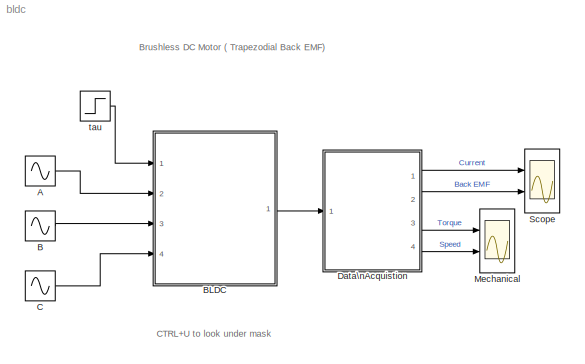
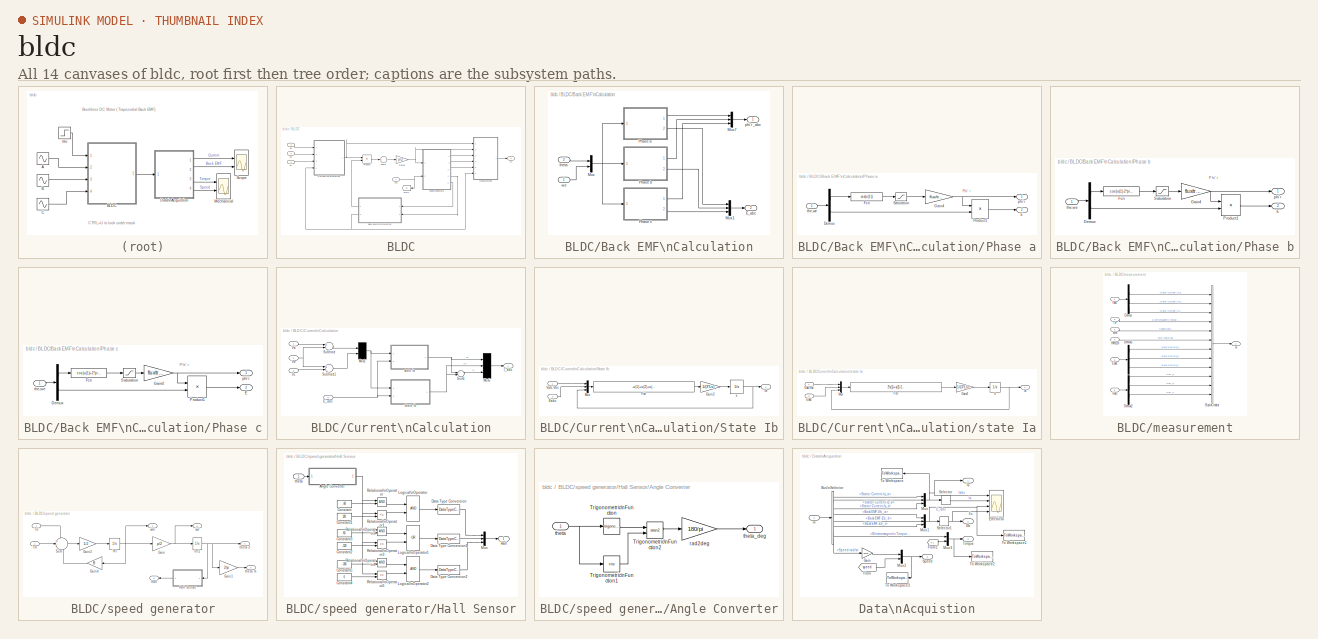
[diagram: thumbnail index - all 14 canvases of the model, root first then tree order]
MODEL bldc
KIND model
CONFIG InitFcn = Ts=10e-6;
BLOCK [Sin] A
  Amplitude = 220*sqrt(2)
  Frequency = 2*pi*50
  Ports = [0, 1]
  SID = 1
  SampleTime = Ts
BLOCK [Sin] B
  Amplitude = 220*sqrt(2)
  Frequency = 2*pi*50
  Phase = -2*pi/3
  Ports = [0, 1]
  SID = 2
  SampleTime = Ts
BLOCK [SubSystem] BLDC
  Ports = [4, 1]
  RequestExecContextInheritance = off
  SID = 3
BLOCK [SubSystem] BLDC/Back EMF\nCalculation
  Ports = [2, 2]
  RequestExecContextInheritance = off
  SID = 8
BLOCK [Outport] BLDC/Back EMF\nCalculation/E_abc
  IconDisplay = Port number
  Port = 2
  SID = 45
BLOCK [Mux] BLDC/Back EMF\nCalculation/Mux
  DisplayOption = bar
  Inputs = 2
  Ports = [2, 1]
  SID = 11
BLOCK [Mux] BLDC/Back EMF\nCalculation/Mux1
  DisplayOption = bar
  Inputs = 3
  Ports = [3, 1]
  SID = 12
BLOCK [Mux] BLDC/Back EMF\nCalculation/Mux7
  DisplayOption = bar
  Inputs = 3
  Ports = [3, 1]
  SID = 13
BLOCK [SubSystem] BLDC/Back EMF\nCalculation/Phase a
  Ports = [1, 2]
  RequestExecContextInheritance = off
  SID = 14
BLOCK [Demux] BLDC/Back EMF\nCalculation/Phase a/Demux
  Outputs = 2
  Ports = [1, 2]
  SID = 16
BLOCK [Outport] BLDC/Back EMF\nCalculation/Phase a/E
  IconDisplay = Port number
  Port = 2
  SID = 22
BLOCK [Fcn] BLDC/Back EMF\nCalculation/Phase a/Fcn
  Expr = cos(u(1))
  SID = 17
BLOCK [Gain] BLDC/Back EMF\nCalculation/Phase a/Gain4
  Gain = flux/trap
  SID = 18
BLOCK [Product] BLDC/Back EMF\nCalculation/Phase a/Product1
  InputSameDT = off
  Ports = [2, 1]
  RndMeth = Floor
  SID = 19
BLOCK [Saturate] BLDC/Back EMF\nCalculation/Phase a/Saturation
  InputPortMap = u0
  LowerLimit = -trap
  Ports = [1, 1]
  SID = 20
  UpperLimit = trap
BLOCK [Outport] BLDC/Back EMF\nCalculation/Phase a/phi'r
  IconDisplay = Port number
  SID = 21
BLOCK [Inport] BLDC/Back EMF\nCalculation/Phase a/the,we
  IconDisplay = Port number
  SID = 15
BLOCK [SubSystem] BLDC/Back EMF\nCalculation/Phase b
  Ports = [1, 2]
  RequestExecContextInheritance = off
  SID = 24
BLOCK [Demux] BLDC/Back EMF\nCalculation/Phase b/Demux
  Outputs = 2
  Ports = [1, 2]
  SID = 26
BLOCK [Outport] BLDC/Back EMF\nCalculation/Phase b/E
  IconDisplay = Port number
  Port = 2
  SID = 32
BLOCK [Fcn] BLDC/Back EMF\nCalculation/Phase b/Fcn
  Expr = cos(u(1)-2*pi/3)
  SID = 27
BLOCK [Gain] BLDC/Back EMF\nCalculation/Phase b/Gain4
  Gain = flux/trap
  SID = 28
BLOCK [Product] BLDC/Back EMF\nCalculation/Phase b/Product1
  InputSameDT = off
  Ports = [2, 1]
  RndMeth = Floor
  SID = 29
BLOCK [Saturate] BLDC/Back EMF\nCalculation/Phase b/Saturation
  InputPortMap = u0
  LowerLimit = -trap
  Ports = [1, 1]
  SID = 30
  UpperLimit = trap
BLOCK [Outport] BLDC/Back EMF\nCalculation/Phase b/phi'r
  IconDisplay = Port number
  SID = 31
BLOCK [Inport] BLDC/Back EMF\nCalculation/Phase b/the,we
  IconDisplay = Port number
  SID = 25
BLOCK [SubSystem] BLDC/Back EMF\nCalculation/Phase c
  Ports = [1, 2]
  RequestExecContextInheritance = off
  SID = 34
BLOCK [Demux] BLDC/Back EMF\nCalculation/Phase c/Demux
  Outputs = 2
  Ports = [1, 2]
  SID = 36
BLOCK [Outport] BLDC/Back EMF\nCalculation/Phase c/E
  IconDisplay = Port number
  Port = 2
  SID = 42
BLOCK [Fcn] BLDC/Back EMF\nCalculation/Phase c/Fcn
  Expr = cos(u(1)+2*pi/3)
  SID = 37
BLOCK [Gain] BLDC/Back EMF\nCalculation/Phase c/Gain4
  Gain = flux/trap
  SID = 38
BLOCK [Product] BLDC/Back EMF\nCalculation/Phase c/Product1
  InputSameDT = off
  Ports = [2, 1]
  RndMeth = Floor
  SID = 39
BLOCK [Saturate] BLDC/Back EMF\nCalculation/Phase c/Saturation
  InputPortMap = u0
  LowerLimit = -trap
  Ports = [1, 1]
  SID = 40
  UpperLimit = trap
BLOCK [Outport] BLDC/Back EMF\nCalculation/Phase c/phi'r
  IconDisplay = Port number
  SID = 41
BLOCK [Inport] BLDC/Back EMF\nCalculation/Phase c/the,we
  IconDisplay = Port number
  SID = 35
BLOCK [Outport] BLDC/Back EMF\nCalculation/phi'r _abc
  IconDisplay = Port number
  SID = 44
BLOCK [Inport] BLDC/Back EMF\nCalculation/theta
  IconDisplay = Port number
  Port = 2
  SID = 10
BLOCK [Inport] BLDC/Back EMF\nCalculation/we
  IconDisplay = Port number
  SID = 9
BLOCK [SubSystem] BLDC/Current\nCalculation
  Ports = [4, 1]
  RequestExecContextInheritance = off
  SID = 46
BLOCK [Inport] BLDC/Current\nCalculation/E_abc
  IconDisplay = Port number
  Port = 4
  SID = 50
BLOCK [Outport] BLDC/Current\nCalculation/I_abc
  IconDisplay = Port number
  SID = 72
BLOCK [Mux] BLDC/Current\nCalculation/Mux2
  DisplayOption = signals
  Inputs = 2
  Ports = [2, 1]
  SID = 51
BLOCK [Mux] BLDC/Current\nCalculation/Mux5
  DisplayOption = signals
  Inputs = 3
  Ports = [3, 1]
  SID = 52
BLOCK [SubSystem] BLDC/Current\nCalculation/State Ib
  Ports = [2, 1]
  RequestExecContextInheritance = off
  SID = 53
BLOCK [Inport] BLDC/Current\nCalculation/State Ib/Eabc
  IconDisplay = Port number
  Port = 2
  SID = 55
BLOCK [Fcn] BLDC/Current\nCalculation/State Ib/Fcn
  Expr = -u(1)+u(2)+u(3)-2*u(4)+u(5)-3*Rs*u(6)
  SID = 56
BLOCK [Gain] BLDC/Current\nCalculation/State Ib/Gain2
  Gain = 1/(3*Ls)
  SID = 57
BLOCK [Outport] BLDC/Current\nCalculation/State Ib/Ib
  IconDisplay = Port number
  SID = 60
BLOCK [Mux] BLDC/Current\nCalculation/State Ib/Mux
  DisplayOption = bar
  Inputs = 3
  Ports = [3, 1]
  SID = 58
BLOCK [Inport] BLDC/Current\nCalculation/State Ib/Vab,Vbc
  IconDisplay = Port number
  SID = 54
BLOCK [Integrator] BLDC/Current\nCalculation/State Ib/s 
  Ports = [1, 1]
  SID = 59
BLOCK [Sum] BLDC/Current\nCalculation/Subtract
  InputSameDT = off
  Inputs = +-
  OutDataTypeStr = Inherit: Inherit via internal rule
  Ports = [2, 1]
  SID = 61
  SaturateOnIntegerOverflow = off
BLOCK [Sum] BLDC/Current\nCalculation/Subtract1
  InputSameDT = off
  Inputs = +-
  OutDataTypeStr = Inherit: Inherit via internal rule
  Ports = [2, 1]
  SID = 62
  SaturateOnIntegerOverflow = off
BLOCK [Sum] BLDC/Current\nCalculation/Sum1
  InputSameDT = off
  Inputs = --
  OutDataTypeStr = Inherit: Inherit via internal rule
  Ports = [2, 1]
  SID = 63
BLOCK [Inport] BLDC/Current\nCalculation/Va
  IconDisplay = Port number
  SID = 47
BLOCK [Inport] BLDC/Current\nCalculation/Vb
  IconDisplay = Port number
  Port = 2
  SID = 48
BLOCK [Inport] BLDC/Current\nCalculation/Vc
  IconDisplay = Port number
  Port = 3
  SID = 49
BLOCK [SubSystem] BLDC/Current\nCalculation/state Ia
  Ports = [2, 1]
  RequestExecContextInheritance = off
  SID = 64
BLOCK [Inport] BLDC/Current\nCalculation/state Ia/Eabc
  IconDisplay = Port number
  Port = 2
  SID = 66
BLOCK [Fcn] BLDC/Current\nCalculation/state Ia/Fcn
  Expr = 2*u(1)+u(2)-2*u(3)+u(4)+u(5)-3*Rs*u(6)
  SID = 67
BLOCK [Gain] BLDC/Current\nCalculation/state Ia/Gain2
  Gain = 1/(3*Ls)
  SID = 68
BLOCK [Outport] BLDC/Current\nCalculation/state Ia/Ia
  IconDisplay = Port number
  SID = 71
BLOCK [Mux] BLDC/Current\nCalculation/state Ia/Mux
  DisplayOption = bar
  Inputs = 3
  Ports = [3, 1]
  SID = 69
BLOCK [Inport] BLDC/Current\nCalculation/state Ia/Vab,Vbc
  IconDisplay = Port number
  SID = 65
BLOCK [Integrator] BLDC/Current\nCalculation/state Ia/s 
  Ports = [1, 1]
  SID = 70
BLOCK [Gain] BLDC/Gain3
  Gain = p/2
  SID = 73
BLOCK [Goto] BLDC/Goto
  GotoTag = TL
  SID = 74
  TagVisibility = global
BLOCK [Product] BLDC/Product
  InputSameDT = off
  Ports = [2, 1]
  RndMeth = Floor
  SID = 75
BLOCK [Sum] BLDC/Sum2
  InputSameDT = off
  Inputs = +
  OutDataTypeStr = Inherit: Inherit via internal rule
  Ports = [1, 1]
  SID = 76
BLOCK [Inport] BLDC/Tm
  IconDisplay = Port number
  SID = 4
BLOCK [Inport] BLDC/Va
  IconDisplay = Port number
  Port = 2
  SID = 5
BLOCK [Inport] BLDC/Vb
  IconDisplay = Port number
  Port = 3
  SID = 6
BLOCK [Inport] BLDC/Vc
  IconDisplay = Port number
  Port = 4
  SID = 7
BLOCK [Outport] BLDC/m
  IconDisplay = Port number
  SID = 133
BLOCK [SubSystem] BLDC/measurement
  Ports = [6, 1]
  RequestExecContextInheritance = off
  SID = 77
BLOCK [BusCreator] BLDC/measurement/Bus\nCreator
  DisplayOption = bar
  Inputs = 12
  Ports = [12, 1]
  SID = 84
BLOCK [Demux] BLDC/measurement/Demux
  DisplayOption = bar
  Outputs = 3
  Ports = [1, 3]
  SID = 85
BLOCK [Demux] BLDC/measurement/Demux1
  DisplayOption = bar
  Outputs = 3
  Ports = [1, 3]
  SID = 86
BLOCK [Demux] BLDC/measurement/Demux2
  DisplayOption = bar
  Outputs = 3
  Ports = [1, 3]
  SID = 87
BLOCK [Inport] BLDC/measurement/Eabc
  IconDisplay = Port number
  Port = 6
  SID = 83
BLOCK [Inport] BLDC/measurement/Hall
  IconDisplay = Port number
  Port = 5
  SID = 82
BLOCK [Inport] BLDC/measurement/Iabc
  IconDisplay = Port number
  SID = 78
BLOCK [Inport] BLDC/measurement/Te
  IconDisplay = Port number
  Port = 2
  SID = 79
BLOCK [Outport] BLDC/measurement/m
  IconDisplay = Port number
  SID = 88
BLOCK [Inport] BLDC/measurement/theta_m
  IconDisplay = Port number
  Port = 4
  SID = 81
BLOCK [Inport] BLDC/measurement/wm
  IconDisplay = Port number
  Port = 3
  SID = 80
BLOCK [SubSystem] BLDC/speed generator
  Ports = [2, 5]
  RequestExecContextInheritance = off
  SID = 89
BLOCK [Gain] BLDC/speed generator/Gain
  Gain = p/2
  SID = 92
BLOCK [Gain] BLDC/speed generator/Gain1
  Gain = 2/p
  SID = 93
BLOCK [Gain] BLDC/speed generator/Gain2
  Gain = 1/J
  SID = 94
BLOCK [Gain] BLDC/speed generator/Gain4
  Gain = B
  SID = 95
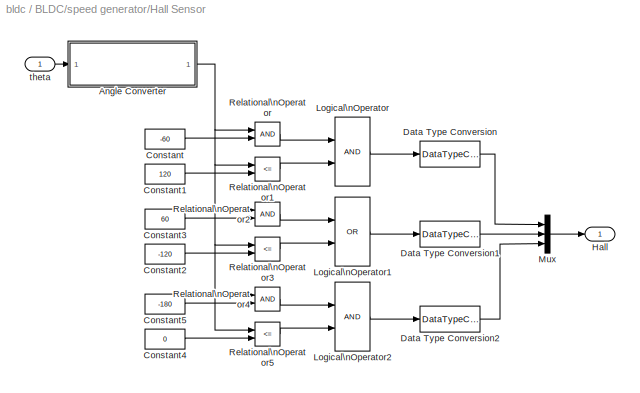
BLOCK [SubSystem] BLDC/speed generator/Hall Sensor
  Ports = [1, 1]
  RequestExecContextInheritance = off
  SID = 96
BLOCK [SubSystem] BLDC/speed generator/Hall Sensor/Angle Converter
  Ports = [1, 1]
  RequestExecContextInheritance = off
  SID = 98
BLOCK [Trigonometry] BLDC/speed generator/Hall Sensor/Angle Converter/Trigonometric\nFunction
  Ports = [1, 1]
  SID = 100
BLOCK [Trigonometry] BLDC/speed generator/Hall Sensor/Angle Converter/Trigonometric\nFunction1
  Operator = cos
  Ports = [1, 1]
  SID = 101
BLOCK [Trigonometry] BLDC/speed generator/Hall Sensor/Angle Converter/Trigonometric\nFunction2
  Operator = atan2
  Ports = [2, 1]
  SID = 102
BLOCK [Gain] BLDC/speed generator/Hall Sensor/Angle Converter/rad2deg
  Gain = 180/pi
  OutDataTypeStr = Inherit: Inherit via internal rule
  ParamDataTypeStr = Inherit: Inherit via internal rule
  SID = 103
  SaturateOnIntegerOverflow = off
BLOCK [Inport] BLDC/speed generator/Hall Sensor/Angle Converter/theta
  IconDisplay = Port number
  SID = 99
BLOCK [Outport] BLDC/speed generator/Hall Sensor/Angle Converter/theta_deg
  IconDisplay = Port number
  SID = 104
BLOCK [Constant] BLDC/speed generator/Hall Sensor/Constant
  SID = 105
  Value = -60
BLOCK [Constant] BLDC/speed generator/Hall Sensor/Constant1
  SID = 106
  Value = 120
BLOCK [Constant] BLDC/speed generator/Hall Sensor/Constant2
  SID = 107
  Value = -120
BLOCK [Constant] BLDC/speed generator/Hall Sensor/Constant3
  SID = 108
  Value = 60
BLOCK [Constant] BLDC/speed generator/Hall Sensor/Constant4
  SID = 109
  Value = 0
BLOCK [Constant] BLDC/speed generator/Hall Sensor/Constant5
  SID = 110
  Value = -180
BLOCK [DataTypeConversion] BLDC/speed generator/Hall Sensor/Data Type Conversion
  RndMeth = Floor
  SID = 111
  SaturateOnIntegerOverflow = off
BLOCK [DataTypeConversion] BLDC/speed generator/Hall Sensor/Data Type Conversion1
  RndMeth = Floor
  SID = 112
  SaturateOnIntegerOverflow = off
BLOCK [DataTypeConversion] BLDC/speed generator/Hall Sensor/Data Type Conversion2
  RndMeth = Floor
  SID = 113
  SaturateOnIntegerOverflow = off
BLOCK [Outport] BLDC/speed generator/Hall Sensor/Hall
  IconDisplay = Port number
  SID = 124
BLOCK [Logic] BLDC/speed generator/Hall Sensor/Logical\nOperator
  AllPortsSameDT = off
  OutDataTypeStr = boolean
  Ports = [2, 1]
  SID = 114
BLOCK [Logic] BLDC/speed generator/Hall Sensor/Logical\nOperator1
  AllPortsSameDT = off
  Operator = OR
  OutDataTypeStr = boolean
  Ports = [2, 1]
  SID = 115
BLOCK [Logic] BLDC/speed generator/Hall Sensor/Logical\nOperator2
  AllPortsSameDT = off
  OutDataTypeStr = boolean
  Ports = [2, 1]
  SID = 116
BLOCK [Mux] BLDC/speed generator/Hall Sensor/Mux
  DisplayOption = bar
  Inputs = 3
  Ports = [3, 1]
  SID = 117
BLOCK [RelationalOperator] BLDC/speed generator/Hall Sensor/Relational\nOperator
  InputSameDT = off
  OutDataTypeStr = boolean
  Ports = [2, 1]
  SID = 118
BLOCK [RelationalOperator] BLDC/speed generator/Hall Sensor/Relational\nOperator1
  InputSameDT = off
  Operator = <=
  OutDataTypeStr = boolean
  Ports = [2, 1]
  SID = 119
BLOCK [RelationalOperator] BLDC/speed generator/Hall Sensor/Relational\nOperator2
  InputSameDT = off
  OutDataTypeStr = boolean
  Ports = [2, 1]
  SID = 120
BLOCK [RelationalOperator] BLDC/speed generator/Hall Sensor/Relational\nOperator3
  InputSameDT = off
  Operator = <=
  OutDataTypeStr = boolean
  Ports = [2, 1]
  SID = 121
BLOCK [RelationalOperator] BLDC/speed generator/Hall Sensor/Relational\nOperator4
  InputSameDT = off
  OutDataTypeStr = boolean
  Ports = [2, 1]
  SID = 122
BLOCK [RelationalOperator] BLDC/speed generator/Hall Sensor/Relational\nOperator5
  InputSameDT = off
  Operator = <=
  OutDataTypeStr = boolean
  Ports = [2, 1]
  SID = 123
BLOCK [Inport] BLDC/speed generator/Hall Sensor/theta
  IconDisplay = Port number
  SID = 97
BLOCK [Integrator] BLDC/speed generator/Int
  Ports = [1, 1]
  SID = 125
BLOCK [Integrator] BLDC/speed generator/Int1
  Ports = [1, 1]
  SID = 126
BLOCK [Sum] BLDC/speed generator/Sum
  IconShape = round
  Inputs = +--
  Ports = [3, 1]
  SID = 127
BLOCK [Inport] BLDC/speed generator/Te
  IconDisplay = Port number
  SID = 90
BLOCK [Inport] BLDC/speed generator/Tm
  IconDisplay = Port number
  Port = 2
  SID = 91
BLOCK [Outport] BLDC/speed generator/hall
  IconDisplay = Port number
  Port = 3
  SID = 130
BLOCK [Outport] BLDC/speed generator/theta e
  IconDisplay = Port number
  Port = 4
  SID = 131
BLOCK [Outport] BLDC/speed generator/theta m
  IconDisplay = Port number
  Port = 2
  SID = 129
BLOCK [Outport] BLDC/speed generator/we
  IconDisplay = Port number
  Port = 5
  SID = 132
BLOCK [Outport] BLDC/speed generator/wm
  IconDisplay = Port number
  SID = 128
BLOCK [Sin] C
  Amplitude = 220*sqrt(2)
  Frequency = 2*pi*50
  Phase = 2*pi/3
  Ports = [0, 1]
  SID = 134
  SampleTime = Ts
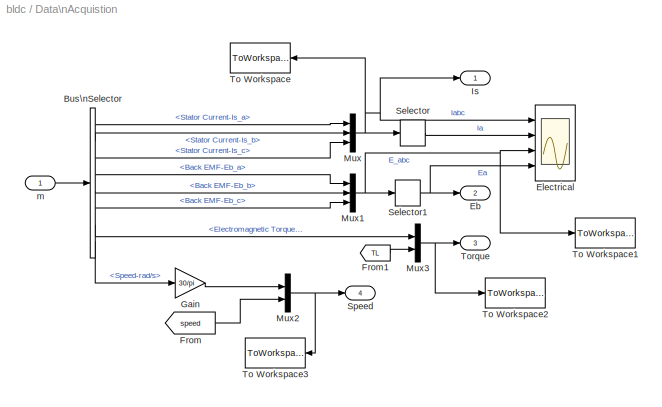
BLOCK [SubSystem] Data\nAcquistion
  Ports = [1, 4]
  RequestExecContextInheritance = off
  SID = 135
BLOCK [BusSelector] Data\nAcquistion/Bus\nSelector
  OutputSignals = Stator Current-Is_a,Stator Current-Is_b,Stator Current-Is_c,Back EMF-Eb_a,Back EMF-Eb_b,Back EMF-Eb_c,Electromagnetic Torque-Nm,Speed-rad/s
  Ports = [1, 8]
  SID = 137
BLOCK [Outport] Data\nAcquistion/Eb
  IconDisplay = Port number
  Port = 2
  SID = 153
BLOCK [Scope] Data\nAcquistion/Electrical
  DataFormat = StructureWithTime
  Floating = off
  LimitDataPoints = off
  NumInputPorts = 4
  Ports = [4]
  SID = 138
  SampleTime = 0
  SaveName = ScopeData3
  ShowLegends = off
  TimeRange = 1
  YMax = 40~30~100~100
  YMin = -40~-20~-100~-100
  ZoomMode = yonly
BLOCK [From] Data\nAcquistion/From
  GotoTag = speed
  SID = 139
BLOCK [From] Data\nAcquistion/From1
  GotoTag = TL
  SID = 140
  TagVisibility = global
BLOCK [Gain] Data\nAcquistion/Gain
  Gain = 30/pi
  OutDataTypeStr = Inherit: Inherit via internal rule
  ParamDataTypeStr = Inherit: Inherit via internal rule
  SID = 141
  SaturateOnIntegerOverflow = off
BLOCK [Outport] Data\nAcquistion/Is
  IconDisplay = Port number
  SID = 152
BLOCK [Mux] Data\nAcquistion/Mux
  DisplayOption = bar
  Inputs = 3
  Ports = [3, 1]
  SID = 142
BLOCK [Mux] Data\nAcquistion/Mux1
  DisplayOption = bar
  Inputs = 3
  Ports = [3, 1]
  SID = 143
BLOCK [Mux] Data\nAcquistion/Mux2
  DisplayOption = bar
  Inputs = 2
  Ports = [2, 1]
  SID = 144
BLOCK [Mux] Data\nAcquistion/Mux3
  DisplayOption = bar
  Inputs = 2
  Ports = [2, 1]
  SID = 145
BLOCK [Selector] Data\nAcquistion/Selector
  Indices = [1 ]
  InputPortWidth = 3
  Ports = [1, 1]
  SID = 146
BLOCK [Selector] Data\nAcquistion/Selector1
  Indices = [1 ]
  InputPortWidth = 3
  Ports = [1, 1]
  SID = 147
BLOCK [Outport] Data\nAcquistion/Speed
  IconDisplay = Port number
  Port = 4
  SID = 155
BLOCK [ToWorkspace] Data\nAcquistion/To Workspace
  MaxDataPoints = inf
  Ports = [1]
  SID = 148
  SampleTime = Ts
  VariableName = Iabc_pi
BLOCK [ToWorkspace] Data\nAcquistion/To Workspace1
  MaxDataPoints = inf
  Ports = [1]
  SID = 149
  SampleTime = Ts
  VariableName = Eabc_pi
BLOCK [ToWorkspace] Data\nAcquistion/To Workspace2
  MaxDataPoints = inf
  Ports = [1]
  SID = 150
  SampleTime = Ts
  VariableName = Te_pi
BLOCK [ToWorkspace] Data\nAcquistion/To Workspace3
  MaxDataPoints = inf
  Ports = [1]
  SID = 151
  SampleTime = Ts
  VariableName = N_pi
BLOCK [Outport] Data\nAcquistion/Torque
  IconDisplay = Port number
  Port = 3
  SID = 154
BLOCK [Inport] Data\nAcquistion/m
  IconDisplay = Port number
  SID = 136
BLOCK [Scope] Mechanical
  DataFormat = StructureWithTime
  Floating = off
  LimitDataPoints = off
  NumInputPorts = 2
  Ports = [2]
  SID = 156
  SampleTime = 0
  SaveName = ScopeData1
  ShowLegends = off
  TimeRange = 1
  YMax = 50~2000
  YMin = -20~0
  ZoomMode = yonly
BLOCK [Scope] Scope
  DataFormat = StructureWithTime
  Floating = off
  LimitDataPoints = off
  NumInputPorts = 2
  Ports = [2]
  SID = 157
  SampleTime = 0
  ShowLegends = off
  TimeRange = 1
  YMax = 150~100
  YMin = -100~-100
  ZoomMode = xonly
BLOCK [Step] tau
  After = 10
  SID = 158
  SampleTime = 0
  Time = 0.5
ANNOTATION (root): Brushless DC Motor ( Trapezodial Back EMF)
ANNOTATION (root): CTRL+U to look under mask
ANNOTATION BLDC/Back EMF\nCalculation/Phase a: Phi' r
ANNOTATION BLDC/Back EMF\nCalculation/Phase b: Phi' r
ANNOTATION BLDC/Back EMF\nCalculation/Phase c: Phi' r
LINE A:1 -> BLDC:2
LINE B:1 -> BLDC:3
LINE BLDC/Back EMF\nCalculation/Mux1:1 -> BLDC/Back EMF\nCalculation/E_abc:1
LINE BLDC/Back EMF\nCalculation/Mux7:1 -> BLDC/Back EMF\nCalculation/phi'r _abc:1
NET BLDC/Back EMF\nCalculation/Mux:1 -> BLDC/Back EMF\nCalculation/Phase a:1, BLDC/Back EMF\nCalculation/Phase b:1, BLDC/Back EMF\nCalculation/Phase c:1
LINE BLDC/Back EMF\nCalculation/Phase a/Demux:1 -> BLDC/Back EMF\nCalculation/Phase a/Fcn:1
LINE BLDC/Back EMF\nCalculation/Phase a/Demux:2 -> BLDC/Back EMF\nCalculation/Phase a/Product1:2
LINE BLDC/Back EMF\nCalculation/Phase a/Fcn:1 -> BLDC/Back EMF\nCalculation/Phase a/Saturation:1
NET BLDC/Back EMF\nCalculation/Phase a/Gain4:1 -> BLDC/Back EMF\nCalculation/Phase a/Product1:1, BLDC/Back EMF\nCalculation/Phase a/phi'r:1
LINE BLDC/Back EMF\nCalculation/Phase a/Product1:1 -> BLDC/Back EMF\nCalculation/Phase a/E:1
LINE BLDC/Back EMF\nCalculation/Phase a/Saturation:1 -> BLDC/Back EMF\nCalculation/Phase a/Gain4:1
LINE BLDC/Back EMF\nCalculation/Phase a/the,we:1 -> BLDC/Back EMF\nCalculation/Phase a/Demux:1
LINE BLDC/Back EMF\nCalculation/Phase a:1 -> BLDC/Back EMF\nCalculation/Mux7:1
LINE BLDC/Back EMF\nCalculation/Phase a:2 -> BLDC/Back EMF\nCalculation/Mux1:1
LINE BLDC/Back EMF\nCalculation/Phase b/Demux:1 -> BLDC/Back EMF\nCalculation/Phase b/Fcn:1
LINE BLDC/Back EMF\nCalculation/Phase b/Demux:2 -> BLDC/Back EMF\nCalculation/Phase b/Product1:2
LINE BLDC/Back EMF\nCalculation/Phase b/Fcn:1 -> BLDC/Back EMF\nCalculation/Phase b/Saturation:1
NET BLDC/Back EMF\nCalculation/Phase b/Gain4:1 -> BLDC/Back EMF\nCalculation/Phase b/Product1:1, BLDC/Back EMF\nCalculation/Phase b/phi'r:1
LINE BLDC/Back EMF\nCalculation/Phase b/Product1:1 -> BLDC/Back EMF\nCalculation/Phase b/E:1
LINE BLDC/Back EMF\nCalculation/Phase b/Saturation:1 -> BLDC/Back EMF\nCalculation/Phase b/Gain4:1
LINE BLDC/Back EMF\nCalculation/Phase b/the,we:1 -> BLDC/Back EMF\nCalculation/Phase b/Demux:1
LINE BLDC/Back EMF\nCalculation/Phase b:1 -> BLDC/Back EMF\nCalculation/Mux7:2
LINE BLDC/Back EMF\nCalculation/Phase b:2 -> BLDC/Back EMF\nCalculation/Mux1:2
LINE BLDC/Back EMF\nCalculation/Phase c/Demux:1 -> BLDC/Back EMF\nCalculation/Phase c/Fcn:1
LINE BLDC/Back EMF\nCalculation/Phase c/Demux:2 -> BLDC/Back EMF\nCalculation/Phase c/Product1:2
LINE BLDC/Back EMF\nCalculation/Phase c/Fcn:1 -> BLDC/Back EMF\nCalculation/Phase c/Saturation:1
NET BLDC/Back EMF\nCalculation/Phase c/Gain4:1 -> BLDC/Back EMF\nCalculation/Phase c/Product1:1, BLDC/Back EMF\nCalculation/Phase c/phi'r:1
LINE BLDC/Back EMF\nCalculation/Phase c/Product1:1 -> BLDC/Back EMF\nCalculation/Phase c/E:1
LINE BLDC/Back EMF\nCalculation/Phase c/Saturation:1 -> BLDC/Back EMF\nCalculation/Phase c/Gain4:1
LINE BLDC/Back EMF\nCalculation/Phase c/the,we:1 -> BLDC/Back EMF\nCalculation/Phase c/Demux:1
LINE BLDC/Back EMF\nCalculation/Phase c:1 -> BLDC/Back EMF\nCalculation/Mux7:3
LINE BLDC/Back EMF\nCalculation/Phase c:2 -> BLDC/Back EMF\nCalculation/Mux1:3
LINE BLDC/Back EMF\nCalculation/theta:1 -> BLDC/Back EMF\nCalculation/Mux:1
LINE BLDC/Back EMF\nCalculation/we:1 -> BLDC/Back EMF\nCalculation/Mux:2
LINE BLDC/Back EMF\nCalculation:1 -> BLDC/Product:2
NET BLDC/Back EMF\nCalculation:2 -> BLDC/Current\nCalculation:4, BLDC/measurement:6
NET BLDC/Current\nCalculation/E_abc:1 -> BLDC/Current\nCalculation/State Ib:2, BLDC/Current\nCalculation/state Ia:2
NET BLDC/Current\nCalculation/Mux2:1 -> BLDC/Current\nCalculation/State Ib:1, BLDC/Current\nCalculation/state Ia:1
LINE BLDC/Current\nCalculation/Mux5:1 -> BLDC/Current\nCalculation/I_abc:1
LINE BLDC/Current\nCalculation/State Ib/Eabc:1 -> BLDC/Current\nCalculation/State Ib/Mux:2
LINE BLDC/Current\nCalculation/State Ib/Fcn:1 -> BLDC/Current\nCalculation/State Ib/Gain2:1
LINE BLDC/Current\nCalculation/State Ib/Gain2:1 -> BLDC/Current\nCalculation/State Ib/s :1
LINE BLDC/Current\nCalculation/State Ib/Mux:1 -> BLDC/Current\nCalculation/State Ib/Fcn:1
LINE BLDC/Current\nCalculation/State Ib/Vab,Vbc:1 -> BLDC/Current\nCalculation/State Ib/Mux:1
NET BLDC/Current\nCalculation/State Ib/s :1 -> BLDC/Current\nCalculation/State Ib/Ib:1, BLDC/Current\nCalculation/State Ib/Mux:3
NET BLDC/Current\nCalculation/State Ib:1 -> BLDC/Current\nCalculation/Mux5:2, BLDC/Current\nCalculation/Sum1:2
LINE BLDC/Current\nCalculation/Subtract1:1 -> BLDC/Current\nCalculation/Mux2:2
LINE BLDC/Current\nCalculation/Subtract:1 -> BLDC/Current\nCalculation/Mux2:1
LINE BLDC/Current\nCalculation/Sum1:1 -> BLDC/Current\nCalculation/Mux5:3
LINE BLDC/Current\nCalculation/Va:1 -> BLDC/Current\nCalculation/Subtract:1
NET BLDC/Current\nCalculation/Vb:1 -> BLDC/Current\nCalculation/Subtract1:1, BLDC/Current\nCalculation/Subtract:2
LINE BLDC/Current\nCalculation/Vc:1 -> BLDC/Current\nCalculation/Subtract1:2
LINE BLDC/Current\nCalculation/state Ia/Eabc:1 -> BLDC/Current\nCalculation/state Ia/Mux:2
LINE BLDC/Current\nCalculation/state Ia/Fcn:1 -> BLDC/Current\nCalculation/state Ia/Gain2:1
LINE BLDC/Current\nCalculation/state Ia/Gain2:1 -> BLDC/Current\nCalculation/state Ia/s :1
LINE BLDC/Current\nCalculation/state Ia/Mux:1 -> BLDC/Current\nCalculation/state Ia/Fcn:1
LINE BLDC/Current\nCalculation/state Ia/Vab,Vbc:1 -> BLDC/Current\nCalculation/state Ia/Mux:1
NET BLDC/Current\nCalculation/state Ia/s :1 -> BLDC/Current\nCalculation/state Ia/Ia:1, BLDC/Current\nCalculation/state Ia/Mux:3
NET BLDC/Current\nCalculation/state Ia:1 -> BLDC/Current\nCalculation/Mux5:1, BLDC/Current\nCalculation/Sum1:1
NET BLDC/Current\nCalculation:1 -> BLDC/Product:1, BLDC/measurement:1
NET BLDC/Gain3:1 -> BLDC/measurement:2, BLDC/speed generator:1
LINE BLDC/Product:1 -> BLDC/Sum2:1
LINE BLDC/Sum2:1 -> BLDC/Gain3:1
NET BLDC/Tm:1 -> BLDC/Goto:1, BLDC/speed generator:2
LINE BLDC/Va:1 -> BLDC/Current\nCalculation:1
LINE BLDC/Vb:1 -> BLDC/Current\nCalculation:2
LINE BLDC/Vc:1 -> BLDC/Current\nCalculation:3
LINE BLDC/measurement/Bus\nCreator:1 -> BLDC/measurement/m:1
LINE BLDC/measurement/Demux1:1 -> BLDC/measurement/Bus\nCreator:7
LINE BLDC/measurement/Demux1:2 -> BLDC/measurement/Bus\nCreator:8
LINE BLDC/measurement/Demux1:3 -> BLDC/measurement/Bus\nCreator:9
LINE BLDC/measurement/Demux2:1 -> BLDC/measurement/Bus\nCreator:10
LINE BLDC/measurement/Demux2:2 -> BLDC/measurement/Bus\nCreator:11
LINE BLDC/measurement/Demux2:3 -> BLDC/measurement/Bus\nCreator:12
LINE BLDC/measurement/Demux:1 -> BLDC/measurement/Bus\nCreator:1
LINE BLDC/measurement/Demux:2 -> BLDC/measurement/Bus\nCreator:2
LINE BLDC/measurement/Demux:3 -> BLDC/measurement/Bus\nCreator:3
LINE BLDC/measurement/Eabc:1 -> BLDC/measurement/Demux1:1
LINE BLDC/measurement/Hall:1 -> BLDC/measurement/Demux2:1
LINE BLDC/measurement/Iabc:1 -> BLDC/measurement/Demux:1
LINE BLDC/measurement/Te:1 -> BLDC/measurement/Bus\nCreator:4
LINE BLDC/measurement/theta_m:1 -> BLDC/measurement/Bus\nCreator:6
LINE BLDC/measurement/wm:1 -> BLDC/measurement/Bus\nCreator:5
LINE BLDC/measurement:1 -> BLDC/m:1
LINE BLDC/speed generator/Gain1:1 -> BLDC/speed generator/theta m:1
LINE BLDC/speed generator/Gain2:1 -> BLDC/speed generator/Int:1
LINE BLDC/speed generator/Gain4:1 -> BLDC/speed generator/Sum:3
NET BLDC/speed generator/Gain:1 -> BLDC/speed generator/Int1:1, BLDC/speed generator/we:1
LINE BLDC/speed generator/Hall Sensor/Angle Converter/Trigonometric\nFunction1:1 -> BLDC/speed generator/Hall Sensor/Angle Converter/Trigonometric\nFunction2:2
LINE BLDC/speed generator/Hall Sensor/Angle Converter/Trigonometric\nFunction2:1 -> BLDC/speed generator/Hall Sensor/Angle Converter/rad2deg:1
LINE BLDC/speed generator/Hall Sensor/Angle Converter/Trigonometric\nFunction:1 -> BLDC/speed generator/Hall Sensor/Angle Converter/Trigonometric\nFunction2:1
LINE BLDC/speed generator/Hall Sensor/Angle Converter/rad2deg:1 -> BLDC/speed generator/Hall Sensor/Angle Converter/theta_deg:1
NET BLDC/speed generator/Hall Sensor/Angle Converter/theta:1 -> BLDC/speed generator/Hall Sensor/Angle Converter/Trigonometric\nFunction1:1, BLDC/speed generator/Hall Sensor/Angle Converter/Trigonometric\nFunction:1
NET BLDC/speed generator/Hall Sensor/Angle Converter:1 -> BLDC/speed generator/Hall Sensor/Relational\nOperator1:1, BLDC/speed generator/Hall Sensor/Relational\nOperator2:1, BLDC/speed generator/Hall Sensor/Relational\nOperator3:1, BLDC/speed generator/Hall Sensor/Relational\nOperator4:1, BLDC/speed generator/Hall Sensor/Relational\nOperator5:1, BLDC/speed generator/Hall Sensor/Relational\nOperator:1
LINE BLDC/speed generator/Hall Sensor/Constant1:1 -> BLDC/speed generator/Hall Sensor/Relational\nOperator1:2
LINE BLDC/speed generator/Hall Sensor/Constant2:1 -> BLDC/speed generator/Hall Sensor/Relational\nOperator3:2
LINE BLDC/speed generator/Hall Sensor/Constant3:1 -> BLDC/speed generator/Hall Sensor/Relational\nOperator2:2
LINE BLDC/speed generator/Hall Sensor/Constant4:1 -> BLDC/speed generator/Hall Sensor/Relational\nOperator5:2
LINE BLDC/speed generator/Hall Sensor/Constant5:1 -> BLDC/speed generator/Hall Sensor/Relational\nOperator4:2
LINE BLDC/speed generator/Hall Sensor/Constant:1 -> BLDC/speed generator/Hall Sensor/Relational\nOperator:2
LINE BLDC/speed generator/Hall Sensor/Data Type Conversion1:1 -> BLDC/speed generator/Hall Sensor/Mux:2
LINE BLDC/speed generator/Hall Sensor/Data Type Conversion2:1 -> BLDC/speed generator/Hall Sensor/Mux:3
LINE BLDC/speed generator/Hall Sensor/Data Type Conversion:1 -> BLDC/speed generator/Hall Sensor/Mux:1
LINE BLDC/speed generator/Hall Sensor/Logical\nOperator1:1 -> BLDC/speed generator/Hall Sensor/Data Type Conversion1:1
LINE BLDC/speed generator/Hall Sensor/Logical\nOperator2:1 -> BLDC/speed generator/Hall Sensor/Data Type Conversion2:1
LINE BLDC/speed generator/Hall Sensor/Logical\nOperator:1 -> BLDC/speed generator/Hall Sensor/Data Type Conversion:1
LINE BLDC/speed generator/Hall Sensor/Mux:1 -> BLDC/speed generator/Hall Sensor/Hall:1
LINE BLDC/speed generator/Hall Sensor/Relational\nOperator1:1 -> BLDC/speed generator/Hall Sensor/Logical\nOperator:2
LINE BLDC/speed generator/Hall Sensor/Relational\nOperator2:1 -> BLDC/speed generator/Hall Sensor/Logical\nOperator1:1
LINE BLDC/speed generator/Hall Sensor/Relational\nOperator3:1 -> BLDC/speed generator/Hall Sensor/Logical\nOperator1:2
LINE BLDC/speed generator/Hall Sensor/Relational\nOperator4:1 -> BLDC/speed generator/Hall Sensor/Logical\nOperator2:1
LINE BLDC/speed generator/Hall Sensor/Relational\nOperator5:1 -> BLDC/speed generator/Hall Sensor/Logical\nOperator2:2
LINE BLDC/speed generator/Hall Sensor/Relational\nOperator:1 -> BLDC/speed generator/Hall Sensor/Logical\nOperator:1
LINE BLDC/speed generator/Hall Sensor/theta:1 -> BLDC/speed generator/Hall Sensor/Angle Converter:1
LINE BLDC/speed generator/Hall Sensor:1 -> BLDC/speed generator/hall:1
NET BLDC/speed generator/Int1:1 -> BLDC/speed generator/Gain1:1, BLDC/speed generator/Hall Sensor:1, BLDC/speed generator/theta e:1
NET BLDC/speed generator/Int:1 -> BLDC/speed generator/Gain4:1, BLDC/speed generator/Gain:1, BLDC/speed generator/wm:1
LINE BLDC/speed generator/Sum:1 -> BLDC/speed generator/Gain2:1
LINE BLDC/speed generator/Te:1 -> BLDC/speed generator/Sum:1
LINE BLDC/speed generator/Tm:1 -> BLDC/speed generator/Sum:2
LINE BLDC/speed generator:1 -> BLDC/measurement:3
LINE BLDC/speed generator:2 -> BLDC/measurement:4
LINE BLDC/speed generator:3 -> BLDC/measurement:5
LINE BLDC/speed generator:4 -> BLDC/Back EMF\nCalculation:2
LINE BLDC/speed generator:5 -> BLDC/Back EMF\nCalculation:1
LINE BLDC:1 -> Data\nAcquistion:1
LINE C:1 -> BLDC:4
LINE Data\nAcquistion/Bus\nSelector:1 -> Data\nAcquistion/Mux:1
LINE Data\nAcquistion/Bus\nSelector:2 -> Data\nAcquistion/Mux:2
LINE Data\nAcquistion/Bus\nSelector:3 -> Data\nAcquistion/Mux:3
LINE Data\nAcquistion/Bus\nSelector:4 -> Data\nAcquistion/Mux1:1
LINE Data\nAcquistion/Bus\nSelector:5 -> Data\nAcquistion/Mux1:2
LINE Data\nAcquistion/Bus\nSelector:6 -> Data\nAcquistion/Mux1:3
LINE Data\nAcquistion/Bus\nSelector:7 -> Data\nAcquistion/Mux3:1
LINE Data\nAcquistion/Bus\nSelector:8 -> Data\nAcquistion/Gain:1
LINE Data\nAcquistion/From1:1 -> Data\nAcquistion/Mux3:2
LINE Data\nAcquistion/From:1 -> Data\nAcquistion/Mux2:2
LINE Data\nAcquistion/Gain:1 -> Data\nAcquistion/Mux2:1
NET Data\nAcquistion/Mux1:1 -> Data\nAcquistion/Electrical:3, Data\nAcquistion/Selector1:1, Data\nAcquistion/To Workspace1:1
NET Data\nAcquistion/Mux2:1 -> Data\nAcquistion/Speed:1, Data\nAcquistion/To Workspace3:1
NET Data\nAcquistion/Mux3:1 -> Data\nAcquistion/To Workspace2:1, Data\nAcquistion/Torque:1
NET Data\nAcquistion/Mux:1 -> Data\nAcquistion/Electrical:1, Data\nAcquistion/Is:1, Data\nAcquistion/Selector:1, Data\nAcquistion/To Workspace:1
NET Data\nAcquistion/Selector1:1 -> Data\nAcquistion/Eb:1, Data\nAcquistion/Electrical:4
LINE Data\nAcquistion/Selector:1 -> Data\nAcquistion/Electrical:2
LINE Data\nAcquistion/m:1 -> Data\nAcquistion/Bus\nSelector:1
LINE Data\nAcquistion:1 -> Scope:1
LINE Data\nAcquistion:2 -> Scope:2
LINE Data\nAcquistion:3 -> Mechanical:1
LINE Data\nAcquistion:4 -> Mechanical:2
LINE tau:1 -> BLDC:1
note: NET lines group one-source signal fan-out (src -> all destinations, sorted); 1:1 wires keep LINE
